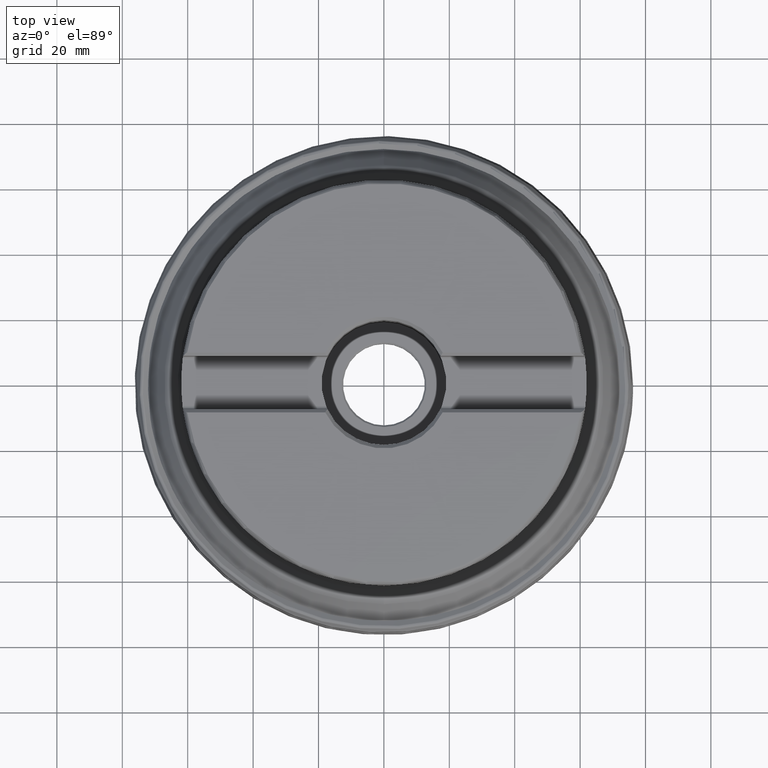
[diagram: clean part render]
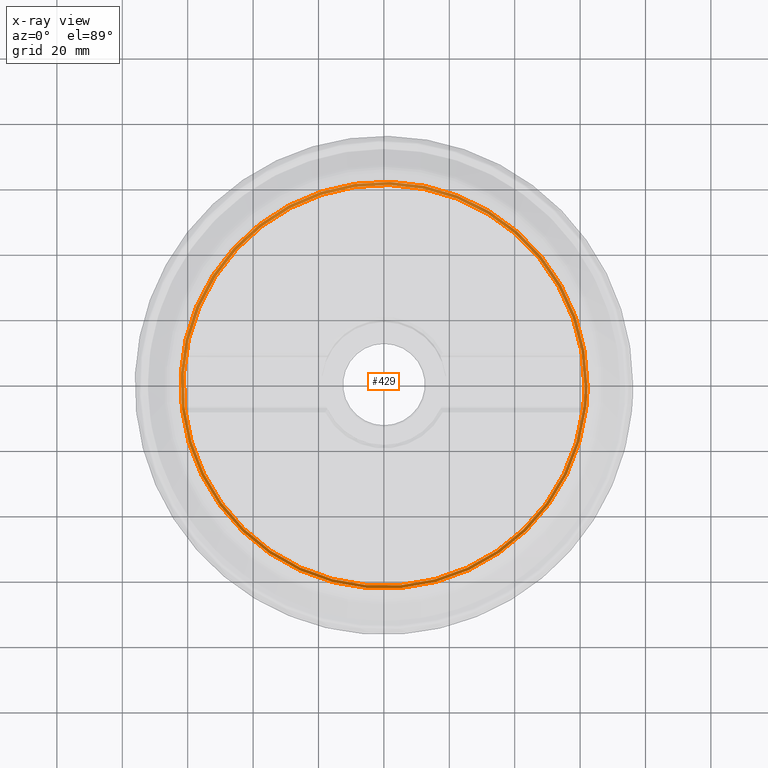
[diagram: x-ray — body ghosted, one internal face saturated and labeled with its STEP entity id]
A machine part, top view, then the same camera in x-ray: the body is ghosted and one INTERNAL B-rep face — a face not visible from any outside direction — is saturated and labeled: STEP entity #429.
In plain terms, the highlighted face is a SurfaceOfRevolution surface.
Its self-contained STEP definition (entity closure, byte-faithful):
#129=SURFACE_OF_REVOLUTION('',#221,#150);
#150=AXIS1_PLACEMENT('',#2498,#1582);
#221=LINE('',#2497,#248);
#248=VECTOR('',#1581,1.79261888889588);
#349=FACE_BOUND('',#593,.T.);
#350=FACE_BOUND('',#594,.T.);
#429=ADVANCED_FACE('',(#349,#350),#129,.F.);
#593=EDGE_LOOP('',(#831));
#594=EDGE_LOOP('',(#832));
#831=ORIENTED_EDGE('',*,*,#1051,.T.);
#832=ORIENTED_EDGE('',*,*,#1052,.F.);
#932=VERTEX_POINT('',#2488);
#933=VERTEX_POINT('',#2496);
#1051=EDGE_CURVE('',#932,#932,#1114,.T.);
#1052=EDGE_CURVE('',#933,#933,#1115,.T.);
#1114=CIRCLE('',#1300,62.2182493354381);
#1115=CIRCLE('',#1301,61.3086397765011);
#1300=AXIS2_PLACEMENT_3D('',#2487,#1576,#1577);
#1301=AXIS2_PLACEMENT_3D('',#2495,#1579,#1580);
#1576=DIRECTION('',(0.,0.,1.));
#1577=DIRECTION('',(1.,0.,0.));
#1579=DIRECTION('',(0.,0.,1.));
#1580=DIRECTION('',(1.,0.,0.));
#1581=DIRECTION('',(0.527473930872372,0.146033933443823,0.836926127285421));
#1582=DIRECTION('',(0.,0.,1.));
#2487=CARTESIAN_POINT('',(0.,0.,9.09055380671262));
#2488=CARTESIAN_POINT('',(62.2182493354381,0.,9.09055380671262));
#2495=CARTESIAN_POINT('',(0.,0.,7.59026420727999));
#2496=CARTESIAN_POINT('',(61.3086397765011,0.,7.59026420727999));
#2497=CARTESIAN_POINT('',(60.8889180671692,-7.16163164749028,7.59026420727999));
#2498=CARTESIAN_POINT('',(0.,0.,0.));